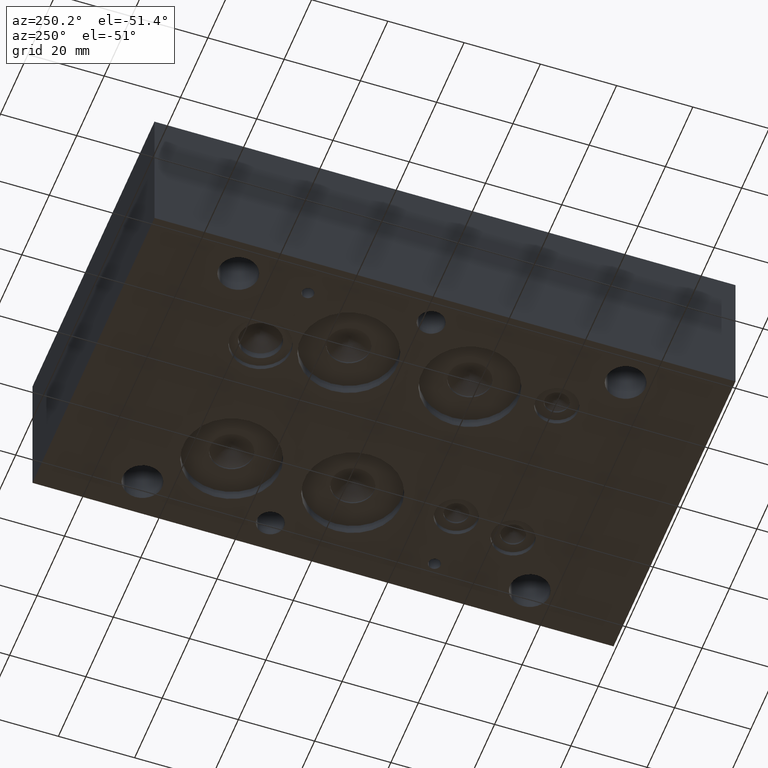
[diagram: clean part render]
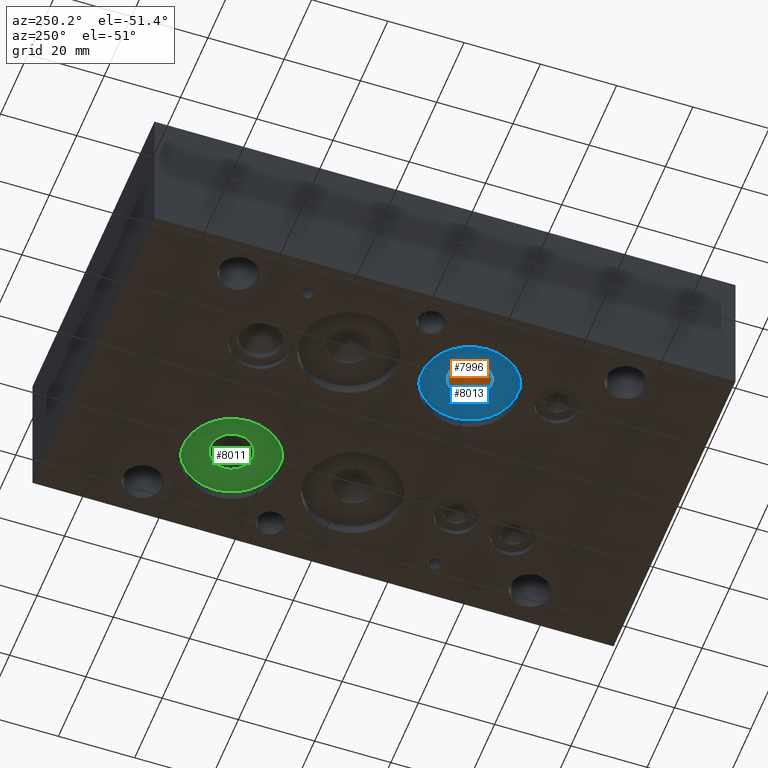
[diagram: same view with three faces highlighted in distinct colors, each labeled with its STEP entity id]
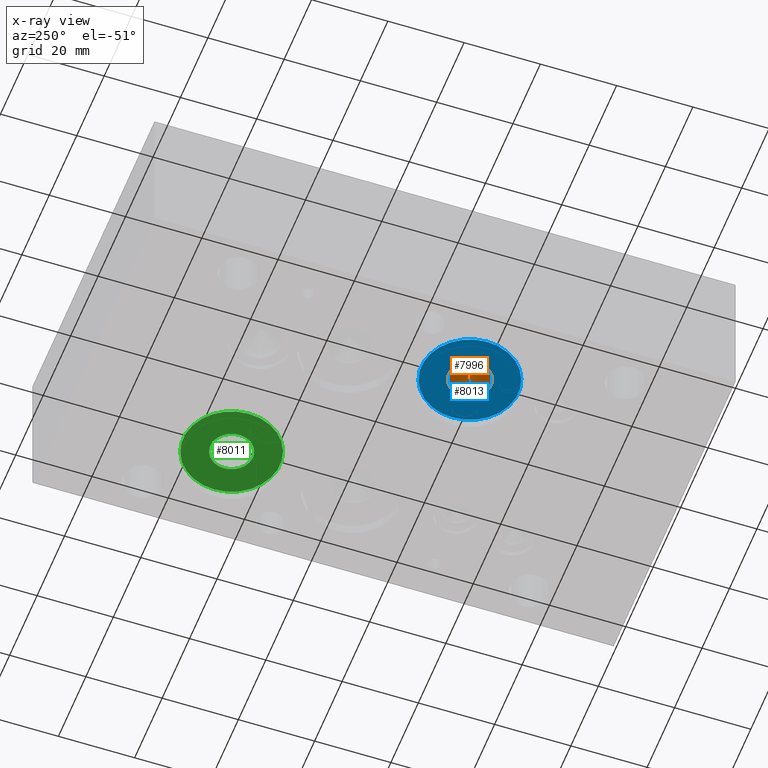
[diagram: x-ray of the same camera — body ghosted, the three highlighted faces saturated]
A machine part, auxiliary view with three faces highlighted in distinct colors.
The next image is the same camera in x-ray (body ghosted, the three faces saturated) — at least one of them is partly hidden behind the body in this view.
Their STEP definitions:

[orange] entity #7996 — the highlighted conical surface has half-angle 60 deg.
#17=CONICAL_SURFACE('',#8383,2.7813,1.0471975511966);
#99=CIRCLE('',#8384,5.5626);
#827=FACE_OUTER_BOUND('',#1289,.T.);
#1289=EDGE_LOOP('',(#6756,#6757,#6758));
#2181=LINE('',#13153,#3019);
#3019=VECTOR('',#9904,2.7813);
#3715=VERTEX_POINT('',#13150);
#3716=VERTEX_POINT('',#13152);
#4752=EDGE_CURVE('',#3715,#3715,#99,.T.);
#4753=EDGE_CURVE('',#3715,#3716,#2181,.T.);
#6756=ORIENTED_EDGE('',*,*,#4752,.T.);
#6757=ORIENTED_EDGE('',*,*,#4753,.T.);
#6758=ORIENTED_EDGE('',*,*,#4753,.F.);
#7996=ADVANCED_FACE('',(#827),#17,.F.);
#8383=AXIS2_PLACEMENT_3D('',#13149,#9900,#9901);
#8384=AXIS2_PLACEMENT_3D('',#13151,#9902,#9903);
#9900=DIRECTION('center_axis',(0.,0.,-1.));
#9901=DIRECTION('ref_axis',(1.,0.,0.));
#9902=DIRECTION('center_axis',(0.,0.,-1.));
#9903=DIRECTION('ref_axis',(1.,0.,0.));
#9904=DIRECTION('',(0.866025403784439,-1.06057523872491E-16,0.5));
#13149=CARTESIAN_POINT('Origin',(23.7998,61.1124,4.81735430369711));
#13150=CARTESIAN_POINT('',(18.2372,61.1124,3.21157));
#13151=CARTESIAN_POINT('Origin',(23.7998,61.1124,3.21157));
#13152=CARTESIAN_POINT('',(23.7998,61.1124,6.42313860739421));
#13153=CARTESIAN_POINT('',(21.0185,61.1124,4.81735430369711));

[blue] entity #8013 — the highlighted planar face has unit normal (0, 0, -1).
#100=CIRCLE('',#8386,5.5626);
#115=CIRCLE('',#8416,12.7);
#432=FACE_BOUND('',#1310,.T.);
#844=FACE_OUTER_BOUND('',#1309,.T.);
#1309=EDGE_LOOP('',(#6813));
#1310=EDGE_LOOP('',(#6814));
#3717=VERTEX_POINT('',#13155);
#3736=VERTEX_POINT('',#13216);
#4754=EDGE_CURVE('',#3717,#3717,#100,.T.);
#4782=EDGE_CURVE('',#3736,#3736,#115,.T.);
#6813=ORIENTED_EDGE('',*,*,#4782,.T.);
#6814=ORIENTED_EDGE('',*,*,#4754,.T.);
#7301=PLANE('',#8417);
#8013=ADVANCED_FACE('',(#844,#432),#7301,.T.);
#8386=AXIS2_PLACEMENT_3D('',#13156,#9907,#9908);
#8416=AXIS2_PLACEMENT_3D('',#13218,#9980,#9981);
#8417=AXIS2_PLACEMENT_3D('',#13219,#9982,#9983);
#9907=DIRECTION('center_axis',(0.,0.,1.));
#9908=DIRECTION('ref_axis',(1.,0.,0.));
#9980=DIRECTION('center_axis',(0.,0.,-1.));
#9981=DIRECTION('ref_axis',(1.,0.,0.));
#9982=DIRECTION('center_axis',(0.,0.,-1.));
#9983=DIRECTION('ref_axis',(1.,0.,0.));
#13155=CARTESIAN_POINT('',(18.2372,61.1124,2.794));
#13156=CARTESIAN_POINT('Origin',(23.7998,61.1124,2.794));
#13216=CARTESIAN_POINT('',(11.0998,61.1124,2.794));
#13218=CARTESIAN_POINT('Origin',(23.7998,61.1124,2.794));
#13219=CARTESIAN_POINT('Origin',(23.7998,61.1124,2.794));

[green] entity #8011 — the highlighted planar face has unit normal (0, 0, -1).
#102=CIRCLE('',#8390,5.5626);
#113=CIRCLE('',#8412,12.7);
#431=FACE_BOUND('',#1307,.T.);
#842=FACE_OUTER_BOUND('',#1306,.T.);
#1306=EDGE_LOOP('',(#6807));
#1307=EDGE_LOOP('',(#6808));
#3720=VERTEX_POINT('',#13164);
#3734=VERTEX_POINT('',#13209);
#4758=EDGE_CURVE('',#3720,#3720,#102,.T.);
#4779=EDGE_CURVE('',#3734,#3734,#113,.T.);
#6807=ORIENTED_EDGE('',*,*,#4779,.T.);
#6808=ORIENTED_EDGE('',*,*,#4758,.T.);
#7300=PLANE('',#8413);
#8011=ADVANCED_FACE('',(#842,#431),#7300,.T.);
#8390=AXIS2_PLACEMENT_3D('',#13165,#9917,#9918);
#8412=AXIS2_PLACEMENT_3D('',#13211,#9971,#9972);
#8413=AXIS2_PLACEMENT_3D('',#13212,#9973,#9974);
#9917=DIRECTION('center_axis',(0.,0.,1.));
#9918=DIRECTION('ref_axis',(1.,0.,0.));
#9971=DIRECTION('center_axis',(0.,0.,-1.));
#9972=DIRECTION('ref_axis',(1.,0.,0.));
#9973=DIRECTION('center_axis',(0.,0.,-1.));
#9974=DIRECTION('ref_axis',(1.,0.,0.));
#13164=CARTESIAN_POINT('',(59.5122,108.7374,2.794));
#13165=CARTESIAN_POINT('Origin',(65.0748,108.7374,2.794));
#13209=CARTESIAN_POINT('',(52.3748,108.7374,2.794));
#13211=CARTESIAN_POINT('Origin',(65.0748,108.7374,2.794));
#13212=CARTESIAN_POINT('Origin',(65.0748,108.7374,2.794));